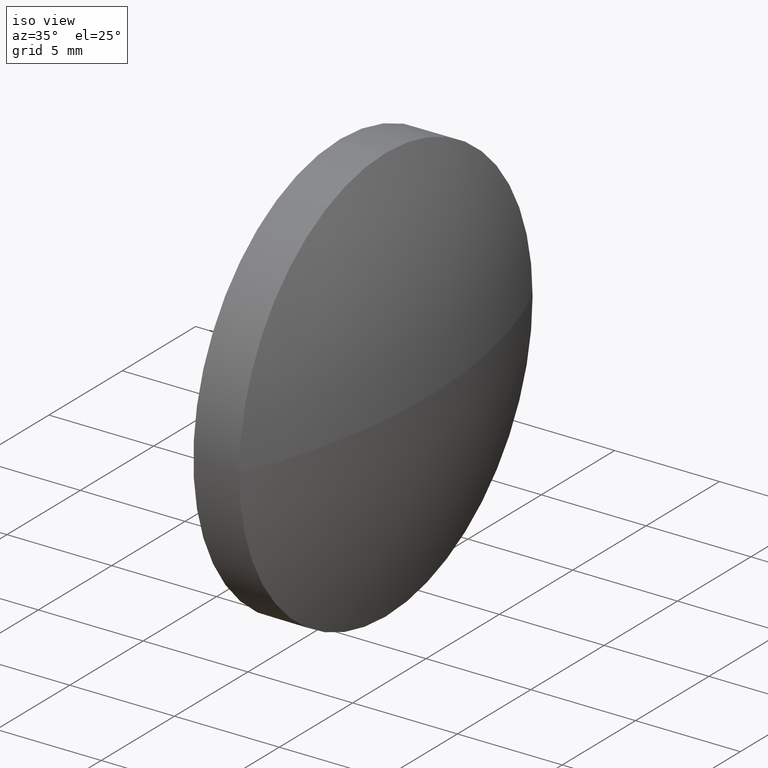
[diagram: clean part render]
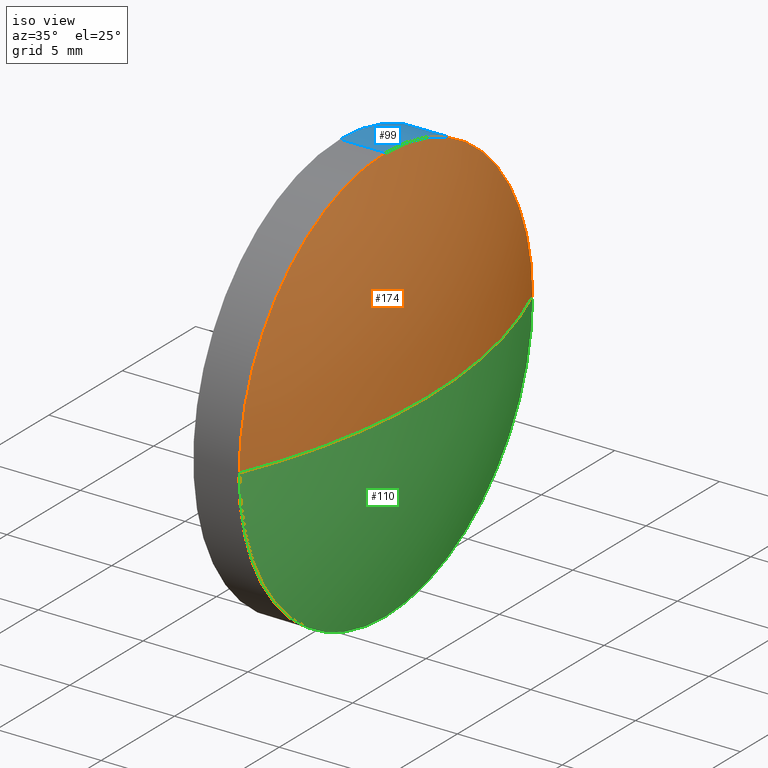
[diagram: same view with three faces highlighted in distinct colors, each labeled with its STEP entity id]
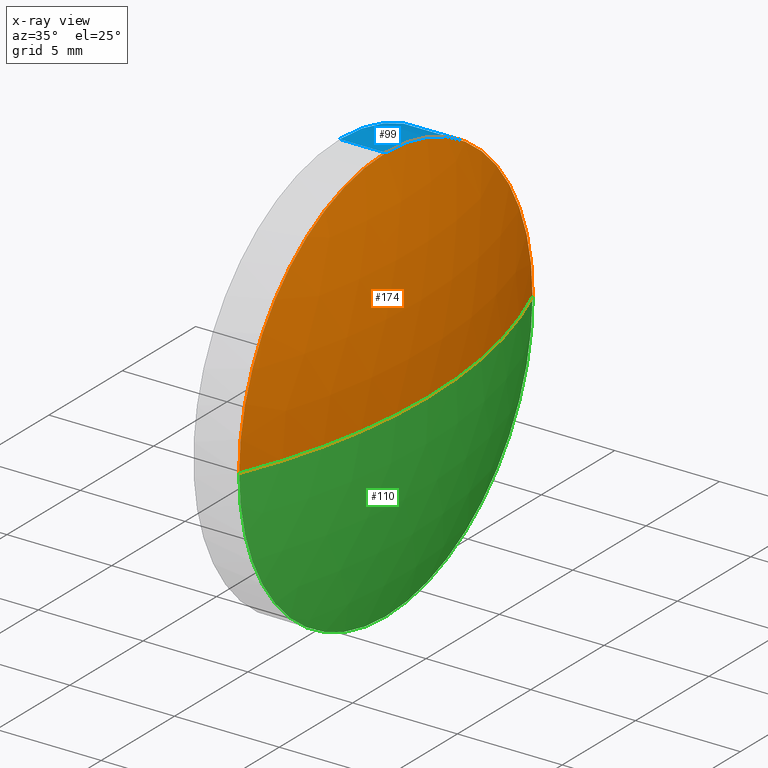
[diagram: x-ray of the same camera — body ghosted, the three highlighted faces saturated]
A machine part, iso view with three faces highlighted in distinct colors.
The next image is the same camera in x-ray (body ghosted, the three faces saturated) — at least one of them is partly hidden behind the body in this view.
Their STEP definitions:

[orange] entity #174 — the highlighted spherical surface has radius 25.8806 mm.
#8 = CARTESIAN_POINT ( 'NONE',  ( 407.0037183694385000, 21.54680395939442400, 0.0000000000000000000 ) ) ;
#9 = CARTESIAN_POINT ( 'NONE',  ( 383.1330964788912200, 21.54680395939439600, 0.0000000000000000000 ) ) ;
#11 = AXIS2_PLACEMENT_3D ( 'NONE', #33, #151, #131 ) ;
#21 = DIRECTION ( 'NONE',  ( -0.0000000000000000000, 0.0000000000000000000, 1.000000000000000000 ) ) ;
#22 = CARTESIAN_POINT ( 'NONE',  ( 407.0037183694385000, 21.54680395939442400, 9.999999999999998200 ) ) ;
#28 = CIRCLE ( 'NONE', #69, 9.999999999999998200 ) ;
#30 = CARTESIAN_POINT ( 'NONE',  ( 409.0137183694384900, 21.54680395939439600, 0.0000000000000000000 ) ) ;
#33 = CARTESIAN_POINT ( 'NONE',  ( 383.1330964788912200, 21.54680395939439600, 0.0000000000000000000 ) ) ;
#36 = SPHERICAL_SURFACE ( 'NONE', #97, 25.88062189054729600 ) ;
#46 = VERTEX_POINT ( 'NONE', #30 ) ;
#50 = CARTESIAN_POINT ( 'NONE',  ( 407.0037183694385000, 21.54680395939442400, 0.0000000000000000000 ) ) ;
#52 = AXIS2_PLACEMENT_3D ( 'NONE', #9, #21, #92 ) ;
#53 = VERTEX_POINT ( 'NONE', #55 ) ;
#54 = ORIENTED_EDGE ( 'NONE', *, *, #148, .T. ) ;
#55 = CARTESIAN_POINT ( 'NONE',  ( 407.0037183694385000, 11.54680395939439600, -1.224646799147353700E-015 ) ) ;
#64 = CIRCLE ( 'NONE', #52, 25.88062189054729600 ) ;
#65 = DIRECTION ( 'NONE',  ( -1.000000000000000000, -0.0000000000000000000, -0.0000000000000000000 ) ) ;
#66 = VERTEX_POINT ( 'NONE', #124 ) ;
#67 = AXIS2_PLACEMENT_3D ( 'NONE', #50, #65, #165 ) ;
#69 = AXIS2_PLACEMENT_3D ( 'NONE', #8, #183, #162 ) ;
#80 = DIRECTION ( 'NONE',  ( 0.0000000000000000000, 1.000000000000000000, 0.0000000000000000000 ) ) ;
#88 = EDGE_LOOP ( 'NONE', ( #108, #54, #89, #161 ) ) ;
#89 = ORIENTED_EDGE ( 'NONE', *, *, #126, .F. ) ;
#92 = DIRECTION ( 'NONE',  ( 1.000000000000000000, 0.0000000000000000000, 0.0000000000000000000 ) ) ;
#97 = AXIS2_PLACEMENT_3D ( 'NONE', #163, #106, #80 ) ;
#98 = VERTEX_POINT ( 'NONE', #22 ) ;
#106 = DIRECTION ( 'NONE',  ( -0.0000000000000000000, 0.0000000000000000000, -1.000000000000000000 ) ) ;
#108 = ORIENTED_EDGE ( 'NONE', *, *, #155, .F. ) ;
#124 = CARTESIAN_POINT ( 'NONE',  ( 407.0037183694385000, 31.54680395939442400, 0.0000000000000000000 ) ) ;
#126 = EDGE_CURVE ( 'NONE', #98, #66, #28, .T. ) ;
#131 = DIRECTION ( 'NONE',  ( 0.0000000000000000000, 1.000000000000000000, 1.224646799147353000E-016 ) ) ;
#134 = CIRCLE ( 'NONE', #67, 9.999999999999998200 ) ;
#146 = FACE_OUTER_BOUND ( 'NONE', #88, .T. ) ;
#148 = EDGE_CURVE ( 'NONE', #46, #66, #64, .T. ) ;
#151 = DIRECTION ( 'NONE',  ( 0.0000000000000000000, 1.224646799147353200E-016, -1.000000000000000000 ) ) ;
#155 = EDGE_CURVE ( 'NONE', #46, #53, #177, .T. ) ;
#161 = ORIENTED_EDGE ( 'NONE', *, *, #172, .F. ) ;
#162 = DIRECTION ( 'NONE',  ( 0.0000000000000000000, 0.0000000000000000000, 1.000000000000000000 ) ) ;
#163 = CARTESIAN_POINT ( 'NONE',  ( 383.1330964788912200, 21.54680395939439600, 0.0000000000000000000 ) ) ;
#165 = DIRECTION ( 'NONE',  ( 0.0000000000000000000, 0.0000000000000000000, 1.000000000000000000 ) ) ;
#172 = EDGE_CURVE ( 'NONE', #53, #98, #134, .T. ) ;
#174 = ADVANCED_FACE ( 'NONE', ( #146 ), #36, .T. ) ;
#177 = CIRCLE ( 'NONE', #11, 25.88062189054730000 ) ;
#183 = DIRECTION ( 'NONE',  ( -1.000000000000000000, -0.0000000000000000000, -0.0000000000000000000 ) ) ;

[blue] entity #99 — the highlighted cylindrical surface (partial cylindrical patch) has radius 10 mm, axis along (-1, -0, -0).
#1 = ORIENTED_EDGE ( 'NONE', *, *, #111, .T. ) ;
#7 = CARTESIAN_POINT ( 'NONE',  ( 396.6972880556904800, 21.54680395939442400, -9.999999999999998200 ) ) ;
#8 = CARTESIAN_POINT ( 'NONE',  ( 407.0037183694385000, 21.54680395939442400, 0.0000000000000000000 ) ) ;
#15 = ORIENTED_EDGE ( 'NONE', *, *, #169, .T. ) ;
#16 = ORIENTED_EDGE ( 'NONE', *, *, #158, .F. ) ;
#17 = CARTESIAN_POINT ( 'NONE',  ( 404.8137183694385000, 21.54680395939442400, 0.0000000000000000000 ) ) ;
#18 = DIRECTION ( 'NONE',  ( -1.000000000000000000, -0.0000000000000000000, -0.0000000000000000000 ) ) ;
#20 = CARTESIAN_POINT ( 'NONE',  ( 396.6972880556904800, 21.54680395939442400, 9.999999999999998200 ) ) ;
#22 = CARTESIAN_POINT ( 'NONE',  ( 407.0037183694385000, 21.54680395939442400, 9.999999999999998200 ) ) ;
#25 = CYLINDRICAL_SURFACE ( 'NONE', #49, 9.999999999999998200 ) ;
#27 = FACE_OUTER_BOUND ( 'NONE', #43, .T. ) ;
#28 = CIRCLE ( 'NONE', #69, 9.999999999999998200 ) ;
#31 = LINE ( 'NONE', #7, #68 ) ;
#43 = EDGE_LOOP ( 'NONE', ( #15, #1, #115, #16, #83 ) ) ;
#45 = DIRECTION ( 'NONE',  ( 0.0000000000000000000, 0.0000000000000000000, 1.000000000000000000 ) ) ;
#47 = DIRECTION ( 'NONE',  ( -1.000000000000000000, -0.0000000000000000000, -0.0000000000000000000 ) ) ;
#49 = AXIS2_PLACEMENT_3D ( 'NONE', #159, #18, #45 ) ;
#61 = DIRECTION ( 'NONE',  ( -1.000000000000000000, -0.0000000000000000000, -0.0000000000000000000 ) ) ;
#62 = CARTESIAN_POINT ( 'NONE',  ( 407.0037183694385000, 21.54680395939442400, 0.0000000000000000000 ) ) ;
#66 = VERTEX_POINT ( 'NONE', #124 ) ;
#68 = VECTOR ( 'NONE', #61, 1000.000000000000000 ) ;
#69 = AXIS2_PLACEMENT_3D ( 'NONE', #8, #183, #162 ) ;
#73 = CARTESIAN_POINT ( 'NONE',  ( 404.8137183694385000, 21.54680395939442400, -9.999999999999998200 ) ) ;
#74 = CIRCLE ( 'NONE', #86, 9.999999999999998200 ) ;
#82 = VERTEX_POINT ( 'NONE', #73 ) ;
#83 = ORIENTED_EDGE ( 'NONE', *, *, #126, .T. ) ;
#86 = AXIS2_PLACEMENT_3D ( 'NONE', #62, #47, #152 ) ;
#91 = AXIS2_PLACEMENT_3D ( 'NONE', #17, #114, #130 ) ;
#98 = VERTEX_POINT ( 'NONE', #22 ) ;
#99 = ADVANCED_FACE ( 'NONE', ( #27 ), #25, .T. ) ;
#101 = VECTOR ( 'NONE', #116, 1000.000000000000000 ) ;
#111 = EDGE_CURVE ( 'NONE', #142, #82, #31, .T. ) ;
#114 = DIRECTION ( 'NONE',  ( -1.000000000000000000, -0.0000000000000000000, -0.0000000000000000000 ) ) ;
#115 = ORIENTED_EDGE ( 'NONE', *, *, #141, .F. ) ;
#116 = DIRECTION ( 'NONE',  ( -1.000000000000000000, -0.0000000000000000000, -0.0000000000000000000 ) ) ;
#123 = VERTEX_POINT ( 'NONE', #180 ) ;
#124 = CARTESIAN_POINT ( 'NONE',  ( 407.0037183694385000, 31.54680395939442400, 0.0000000000000000000 ) ) ;
#126 = EDGE_CURVE ( 'NONE', #98, #66, #28, .T. ) ;
#130 = DIRECTION ( 'NONE',  ( 0.0000000000000000000, 0.0000000000000000000, 1.000000000000000000 ) ) ;
#140 = CIRCLE ( 'NONE', #91, 9.999999999999998200 ) ;
#141 = EDGE_CURVE ( 'NONE', #123, #82, #140, .T. ) ;
#142 = VERTEX_POINT ( 'NONE', #149 ) ;
#149 = CARTESIAN_POINT ( 'NONE',  ( 407.0037183694385000, 21.54680395939442400, -9.999999999999998200 ) ) ;
#152 = DIRECTION ( 'NONE',  ( 0.0000000000000000000, 0.0000000000000000000, 1.000000000000000000 ) ) ;
#158 = EDGE_CURVE ( 'NONE', #98, #123, #185, .T. ) ;
#159 = CARTESIAN_POINT ( 'NONE',  ( 396.6972880556904800, 21.54680395939442400, 0.0000000000000000000 ) ) ;
#162 = DIRECTION ( 'NONE',  ( 0.0000000000000000000, 0.0000000000000000000, 1.000000000000000000 ) ) ;
#169 = EDGE_CURVE ( 'NONE', #66, #142, #74, .T. ) ;
#180 = CARTESIAN_POINT ( 'NONE',  ( 404.8137183694385000, 21.54680395939442400, 9.999999999999998200 ) ) ;
#183 = DIRECTION ( 'NONE',  ( -1.000000000000000000, -0.0000000000000000000, -0.0000000000000000000 ) ) ;
#185 = LINE ( 'NONE', #20, #101 ) ;

[green] entity #110 — the highlighted spherical surface has radius 25.8806 mm.
#5 = EDGE_LOOP ( 'NONE', ( #13, #70, #167, #129 ) ) ;
#9 = CARTESIAN_POINT ( 'NONE',  ( 383.1330964788912200, 21.54680395939439600, 0.0000000000000000000 ) ) ;
#11 = AXIS2_PLACEMENT_3D ( 'NONE', #33, #151, #131 ) ;
#13 = ORIENTED_EDGE ( 'NONE', *, *, #148, .F. ) ;
#21 = DIRECTION ( 'NONE',  ( -0.0000000000000000000, 0.0000000000000000000, 1.000000000000000000 ) ) ;
#30 = CARTESIAN_POINT ( 'NONE',  ( 409.0137183694384900, 21.54680395939439600, 0.0000000000000000000 ) ) ;
#33 = CARTESIAN_POINT ( 'NONE',  ( 383.1330964788912200, 21.54680395939439600, 0.0000000000000000000 ) ) ;
#34 = CIRCLE ( 'NONE', #57, 9.999999999999998200 ) ;
#44 = DIRECTION ( 'NONE',  ( -1.000000000000000000, -0.0000000000000000000, -0.0000000000000000000 ) ) ;
#46 = VERTEX_POINT ( 'NONE', #30 ) ;
#47 = DIRECTION ( 'NONE',  ( -1.000000000000000000, -0.0000000000000000000, -0.0000000000000000000 ) ) ;
#52 = AXIS2_PLACEMENT_3D ( 'NONE', #9, #21, #92 ) ;
#53 = VERTEX_POINT ( 'NONE', #55 ) ;
#55 = CARTESIAN_POINT ( 'NONE',  ( 407.0037183694385000, 11.54680395939439600, -1.224646799147353700E-015 ) ) ;
#57 = AXIS2_PLACEMENT_3D ( 'NONE', #77, #44, #78 ) ;
#62 = CARTESIAN_POINT ( 'NONE',  ( 407.0037183694385000, 21.54680395939442400, 0.0000000000000000000 ) ) ;
#64 = CIRCLE ( 'NONE', #52, 25.88062189054729600 ) ;
#66 = VERTEX_POINT ( 'NONE', #124 ) ;
#70 = ORIENTED_EDGE ( 'NONE', *, *, #155, .T. ) ;
#72 = AXIS2_PLACEMENT_3D ( 'NONE', #104, #132, #90 ) ;
#74 = CIRCLE ( 'NONE', #86, 9.999999999999998200 ) ;
#77 = CARTESIAN_POINT ( 'NONE',  ( 407.0037183694385000, 21.54680395939442400, 0.0000000000000000000 ) ) ;
#78 = DIRECTION ( 'NONE',  ( 0.0000000000000000000, 0.0000000000000000000, 1.000000000000000000 ) ) ;
#86 = AXIS2_PLACEMENT_3D ( 'NONE', #62, #47, #152 ) ;
#90 = DIRECTION ( 'NONE',  ( 0.0000000000000000000, 1.000000000000000000, 0.0000000000000000000 ) ) ;
#92 = DIRECTION ( 'NONE',  ( 1.000000000000000000, 0.0000000000000000000, 0.0000000000000000000 ) ) ;
#104 = CARTESIAN_POINT ( 'NONE',  ( 383.1330964788912200, 21.54680395939439600, 0.0000000000000000000 ) ) ;
#105 = FACE_OUTER_BOUND ( 'NONE', #5, .T. ) ;
#110 = ADVANCED_FACE ( 'NONE', ( #105 ), #144, .T. ) ;
#122 = EDGE_CURVE ( 'NONE', #142, #53, #34, .T. ) ;
#124 = CARTESIAN_POINT ( 'NONE',  ( 407.0037183694385000, 31.54680395939442400, 0.0000000000000000000 ) ) ;
#129 = ORIENTED_EDGE ( 'NONE', *, *, #169, .F. ) ;
#131 = DIRECTION ( 'NONE',  ( 0.0000000000000000000, 1.000000000000000000, 1.224646799147353000E-016 ) ) ;
#132 = DIRECTION ( 'NONE',  ( -0.0000000000000000000, 0.0000000000000000000, -1.000000000000000000 ) ) ;
#142 = VERTEX_POINT ( 'NONE', #149 ) ;
#144 = SPHERICAL_SURFACE ( 'NONE', #72, 25.88062189054729600 ) ;
#148 = EDGE_CURVE ( 'NONE', #46, #66, #64, .T. ) ;
#149 = CARTESIAN_POINT ( 'NONE',  ( 407.0037183694385000, 21.54680395939442400, -9.999999999999998200 ) ) ;
#151 = DIRECTION ( 'NONE',  ( 0.0000000000000000000, 1.224646799147353200E-016, -1.000000000000000000 ) ) ;
#152 = DIRECTION ( 'NONE',  ( 0.0000000000000000000, 0.0000000000000000000, 1.000000000000000000 ) ) ;
#155 = EDGE_CURVE ( 'NONE', #46, #53, #177, .T. ) ;
#167 = ORIENTED_EDGE ( 'NONE', *, *, #122, .F. ) ;
#169 = EDGE_CURVE ( 'NONE', #66, #142, #74, .T. ) ;
#177 = CIRCLE ( 'NONE', #11, 25.88062189054730000 ) ;